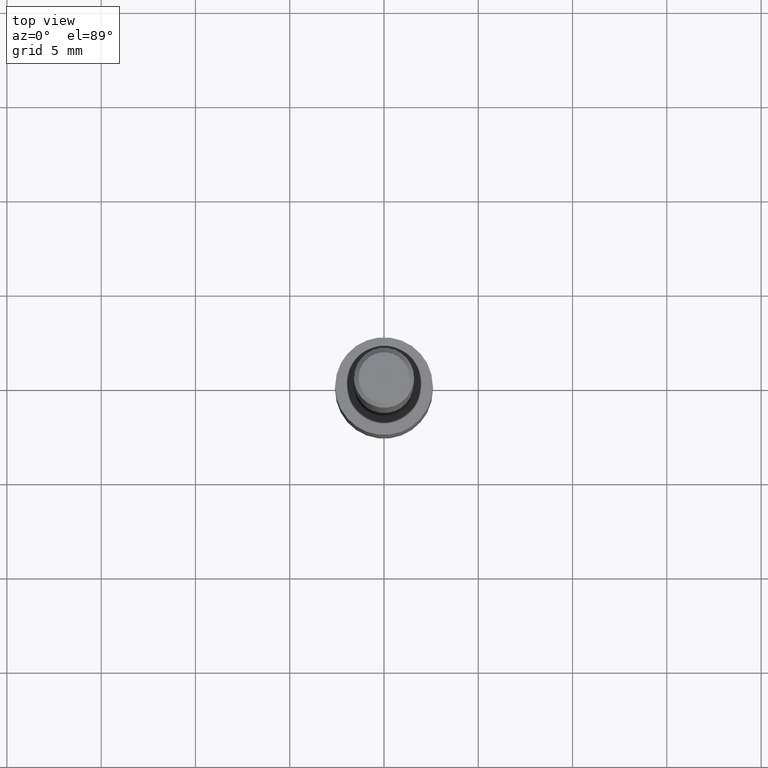
[diagram: clean part render]
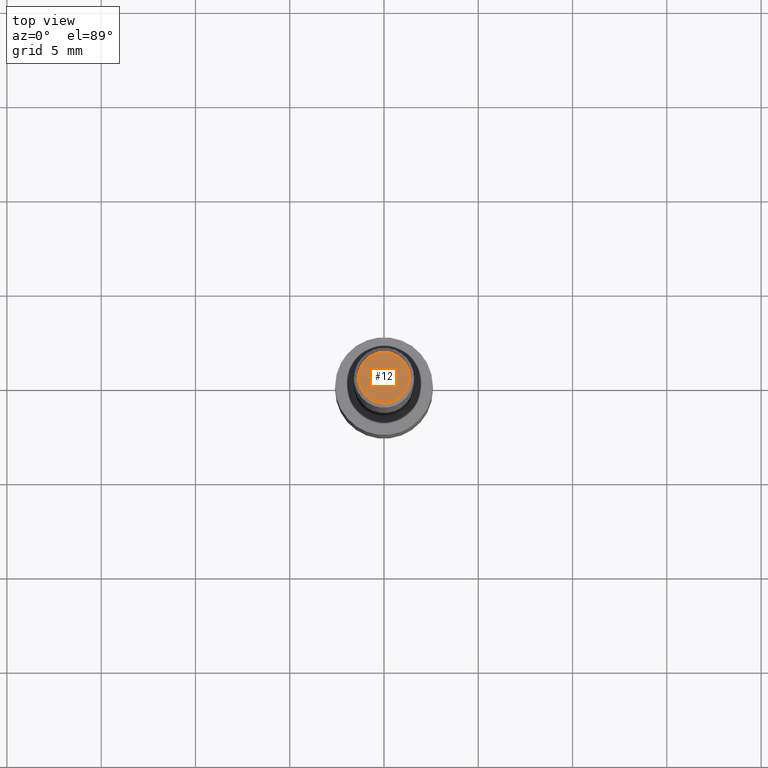
[diagram: same view with one face highlighted and labeled with its STEP entity id]
A machine part, top view. The second image highlights one B-rep face of the part: STEP entity #12.
In plain terms, the highlighted planar face has unit normal (0, -0, -1).
Its self-contained STEP definition (entity closure, byte-faithful):
#12 = ADVANCED_FACE ( 'NONE', ( #126 ), #179, .F. ) ;
#47 = EDGE_CURVE ( 'NONE', #253, #151, #199, .T. ) ;
#54 = AXIS2_PLACEMENT_3D ( 'NONE', #214, #232, #187 ) ;
#69 = ORIENTED_EDGE ( 'NONE', *, *, #47, .T. ) ;
#72 = ORIENTED_EDGE ( 'NONE', *, *, #149, .T. ) ;
#76 = DIRECTION ( 'NONE',  ( 2.438088387897960049E-29, -3.491481338843145188E-15, -1.000000000000000000 ) ) ;
#84 = AXIS2_PLACEMENT_3D ( 'NONE', #213, #135, #107 ) ;
#99 = CIRCLE ( 'NONE', #84, 0.05312499999999999861 ) ;
#107 = DIRECTION ( 'NONE',  ( 1.000000000000000000, -6.982962677686266711E-15, 4.876176628004948512E-29 ) ) ;
#111 = CARTESIAN_POINT ( 'NONE',  ( -0.05312499999999999861, 3.873362110279099094E-16, 3.061616995216862494E-21 ) ) ;
#119 = CARTESIAN_POINT ( 'NONE',  ( 0.05312499999999999861, -4.129888592719939842E-16, 3.061617000609493422E-21 ) ) ;
#126 = FACE_OUTER_BOUND ( 'NONE', #200, .T. ) ;
#135 = DIRECTION ( 'NONE',  ( -2.445468806185136597E-29, 3.491481338843145583E-15, 1.000000000000000000 ) ) ;
#149 = EDGE_CURVE ( 'NONE', #151, #253, #99, .T. ) ;
#151 = VERTEX_POINT ( 'NONE', #111 ) ;
#179 = PLANE ( 'NONE',  #319 ) ;
#183 = DIRECTION ( 'NONE',  ( -1.000000000000000000, 6.982962677686265922E-15, -4.876176775795935793E-29 ) ) ;
#187 = DIRECTION ( 'NONE',  ( 1.000000000000000000, -6.982962677686266711E-15, 4.876176628004948512E-29 ) ) ;
#199 = CIRCLE ( 'NONE', #54, 0.05312499999999999861 ) ;
#200 = EDGE_LOOP ( 'NONE', ( #72, #69 ) ) ;
#213 = CARTESIAN_POINT ( 'NONE',  ( -7.487088864773345706E-50, 1.068957861474247695E-35, 3.061616997868395197E-21 ) ) ;
#214 = CARTESIAN_POINT ( 'NONE',  ( -7.487088864773345706E-50, 1.068957861474247695E-35, 3.061616997868395197E-21 ) ) ;
#232 = DIRECTION ( 'NONE',  ( -2.445468806185136597E-29, 3.491481338843145583E-15, 1.000000000000000000 ) ) ;
#253 = VERTEX_POINT ( 'NONE', #119 ) ;
#294 = CARTESIAN_POINT ( 'NONE',  ( -3.743544432386672853E-50, 5.344789307371238476E-36, 1.530808498934197599E-21 ) ) ;
#319 = AXIS2_PLACEMENT_3D ( 'NONE', #294, #76, #183 ) ;